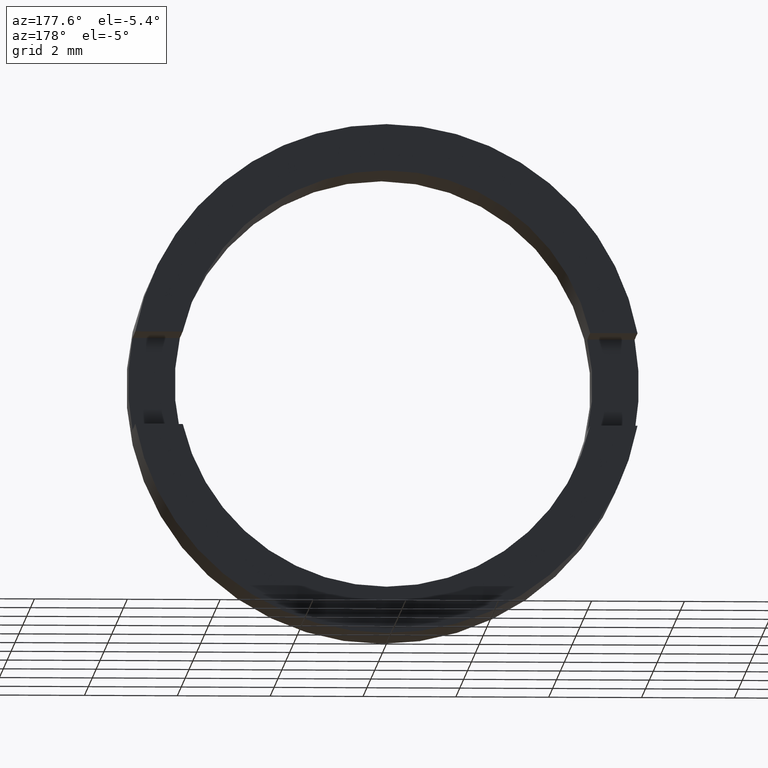
[diagram: clean part render]
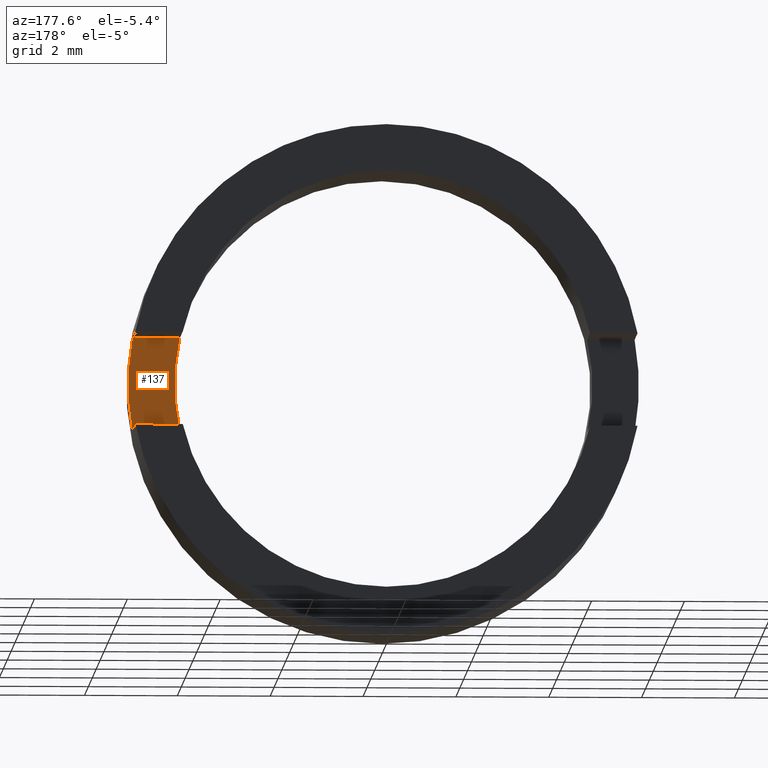
[diagram: same view with one face highlighted and labeled with its STEP entity id]
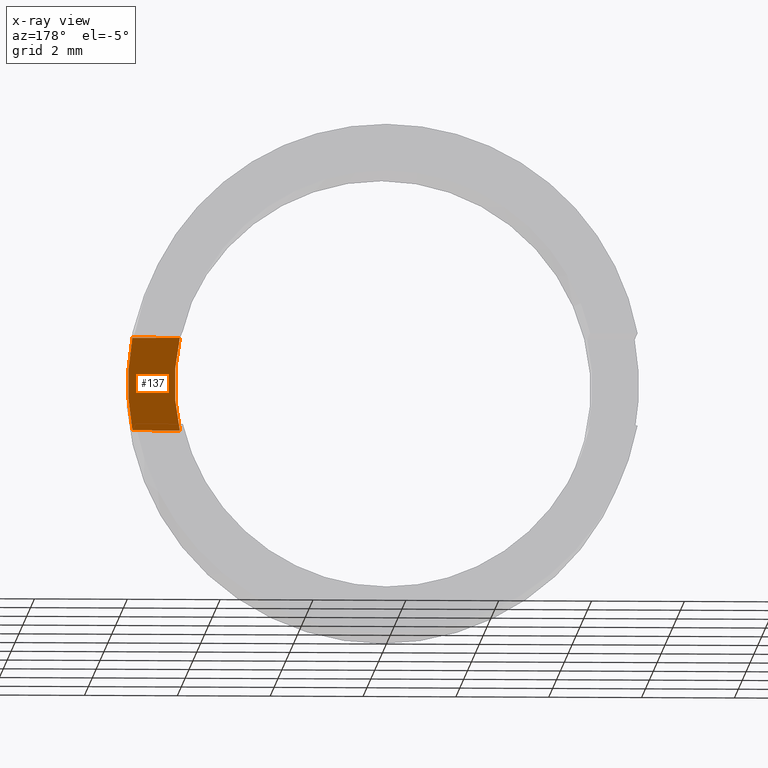
[diagram: x-ray of the same camera — body ghosted, the highlighted face saturated]
A machine part, auxiliary view. The second image highlights one B-rep face of the part: STEP entity #137.
The next image is the same camera in x-ray: the body ghosted, the highlighted face saturated — about 0% of this face is hidden behind the body in this view.
In plain terms, the highlighted planar face has unit normal (0, 1, 0).
Its self-contained STEP definition (entity closure, byte-faithful):
#10 = CARTESIAN_POINT ( 'NONE',  ( 5.408326913195989700, -3.464249787179428400, 0.9999999999999995600 ) ) ;
#30 = FACE_OUTER_BOUND ( 'NONE', #185, .T. ) ;
#31 = AXIS2_PLACEMENT_3D ( 'NONE', #254, #214, #431 ) ;
#80 = ORIENTED_EDGE ( 'NONE', *, *, #516, .T. ) ;
#97 = EDGE_CURVE ( 'NONE', #322, #201, #133, .T. ) ;
#109 = DIRECTION ( 'NONE',  ( 0.0000000000000000000, 1.000000000000000000, 0.0000000000000000000 ) ) ;
#113 = VERTEX_POINT ( 'NONE', #10 ) ;
#133 = LINE ( 'NONE', #197, #464 ) ;
#137 = ADVANCED_FACE ( 'NONE', ( #30 ), #317, .T. ) ;
#165 = ORIENTED_EDGE ( 'NONE', *, *, #391, .T. ) ;
#174 = ORIENTED_EDGE ( 'NONE', *, *, #97, .T. ) ;
#185 = EDGE_LOOP ( 'NONE', ( #165, #174, #291, #80 ) ) ;
#197 = CARTESIAN_POINT ( 'NONE',  ( -26.85254027261461800, -3.464249787179431100, -1.000000000000000000 ) ) ;
#201 = VERTEX_POINT ( 'NONE', #280 ) ;
#214 = DIRECTION ( 'NONE',  ( -0.0000000000000000000, -1.000000000000000000, -0.0000000000000000000 ) ) ;
#252 = LINE ( 'NONE', #436, #294 ) ;
#254 = CARTESIAN_POINT ( 'NONE',  ( 0.0000000000000000000, -3.464249787179428400, 0.0000000000000000000 ) ) ;
#280 = CARTESIAN_POINT ( 'NONE',  ( 4.387482193696067500, -3.464249787179428400, -0.9999999999999995600 ) ) ;
#291 = ORIENTED_EDGE ( 'NONE', *, *, #482, .T. ) ;
#294 = VECTOR ( 'NONE', #577, 1000.000000000000000 ) ;
#298 = AXIS2_PLACEMENT_3D ( 'NONE', #461, #109, #423 ) ;
#317 = PLANE ( 'NONE',  #298 ) ;
#322 = VERTEX_POINT ( 'NONE', #378 ) ;
#337 = CARTESIAN_POINT ( 'NONE',  ( 0.0000000000000000000, -3.464249787179428400, 0.0000000000000000000 ) ) ;
#371 = DIRECTION ( 'NONE',  ( -1.000000000000000000, -0.0000000000000000000, -0.0000000000000000000 ) ) ;
#378 = CARTESIAN_POINT ( 'NONE',  ( 5.408326913195989700, -3.464249787179428400, -0.9999999999999995600 ) ) ;
#391 = EDGE_CURVE ( 'NONE', #113, #322, #555, .T. ) ;
#423 = DIRECTION ( 'NONE',  ( 0.0000000000000000000, -0.0000000000000000000, 1.000000000000000000 ) ) ;
#431 = DIRECTION ( 'NONE',  ( 8.881784197001253900E-015, 0.0000000000000000000, 1.000000000000000000 ) ) ;
#436 = CARTESIAN_POINT ( 'NONE',  ( -26.85254027261461800, -3.464249787179431100, 1.000000000000000000 ) ) ;
#452 = AXIS2_PLACEMENT_3D ( 'NONE', #337, #468, #520 ) ;
#461 = CARTESIAN_POINT ( 'NONE',  ( 0.0000000000000000000, -3.464249787179431100, 0.0000000000000000000 ) ) ;
#464 = VECTOR ( 'NONE', #371, 1000.000000000000000 ) ;
#468 = DIRECTION ( 'NONE',  ( 0.0000000000000000000, 1.000000000000000000, 0.0000000000000000000 ) ) ;
#478 = CARTESIAN_POINT ( 'NONE',  ( 4.387482193696067500, -3.464249787179428400, 0.9999999999999995600 ) ) ;
#482 = EDGE_CURVE ( 'NONE', #201, #499, #545, .T. ) ;
#499 = VERTEX_POINT ( 'NONE', #478 ) ;
#516 = EDGE_CURVE ( 'NONE', #499, #113, #252, .T. ) ;
#520 = DIRECTION ( 'NONE',  ( 0.0000000000000000000, 0.0000000000000000000, 1.000000000000000000 ) ) ;
#545 = CIRCLE ( 'NONE', #31, 4.500000000000007100 ) ;
#555 = CIRCLE ( 'NONE', #452, 5.500000000000006200 ) ;
#577 = DIRECTION ( 'NONE',  ( 1.000000000000000000, 0.0000000000000000000, 0.0000000000000000000 ) ) ;